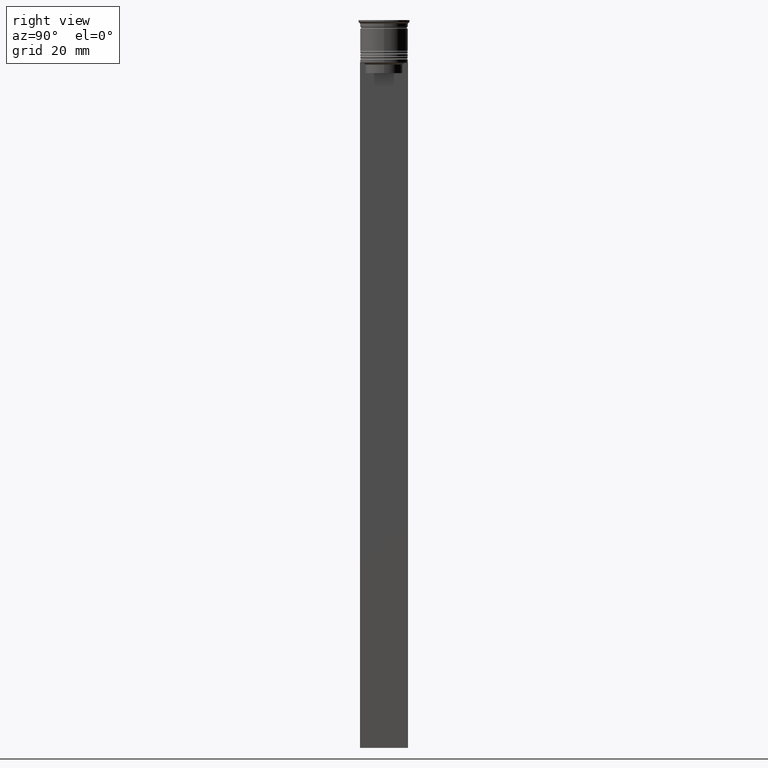
[diagram: clean part render]
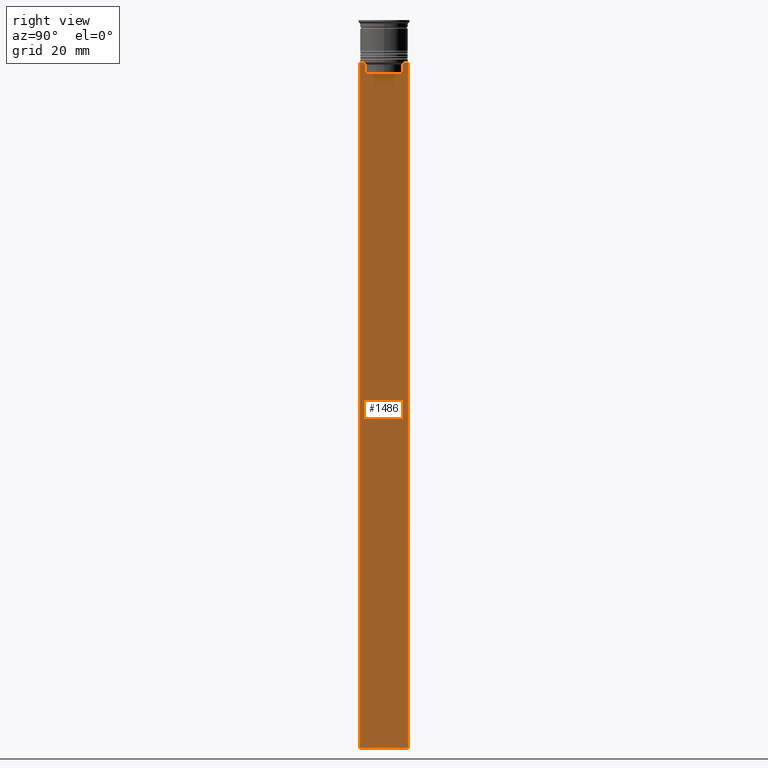
[diagram: same view with one face highlighted and labeled with its STEP entity id]
A machine part, right view. The second image highlights one B-rep face of the part: STEP entity #1486.
In plain terms, the highlighted planar face has unit normal (-1, 0, 0).
Its self-contained STEP definition (entity closure, byte-faithful):
#17 = CARTESIAN_POINT ( 'NONE',  ( 0.5000000000000000000, -5.376802023508029826, -15.50000000000000000 ) ) ;
#42 = EDGE_CURVE ( 'NONE', #1862, #1470, #689, .T. ) ;
#48 = LINE ( 'NONE', #2017, #325 ) ;
#100 = LINE ( 'NONE', #459, #1176 ) ;
#107 = CARTESIAN_POINT ( 'NONE',  ( 0.5000000000000000000, -5.711478856069293286, -12.66669469529570335 ) ) ;
#135 = VECTOR ( 'NONE', #1858, 1000.000000000000000 ) ;
#153 = CARTESIAN_POINT ( 'NONE',  ( 0.5000000000000000000, 5.544156989057553275, -12.83336397825725861 ) ) ;
#199 = VERTEX_POINT ( 'NONE', #1292 ) ;
#256 = VERTEX_POINT ( 'NONE', #2167 ) ;
#290 = VERTEX_POINT ( 'NONE', #17 ) ;
#311 = VERTEX_POINT ( 'NONE', #1370 ) ;
#325 = VECTOR ( 'NONE', #1802, 1000.000000000000000 ) ;
#347 = ORIENTED_EDGE ( 'NONE', *, *, #755, .T. ) ;
#356 = EDGE_CURVE ( 'NONE', #199, #1424, #413, .T. ) ;
#368 = CARTESIAN_POINT ( 'NONE',  ( 0.5000000000000000000, 7.000000000000002665, -12.50000000000000000 ) ) ;
#384 = DIRECTION ( 'NONE',  ( -0.000000000000000000, -0.000000000000000000, 1.000000000000000000 ) ) ;
#401 = ORIENTED_EDGE ( 'NONE', *, *, #457, .T. ) ;
#413 = LINE ( 'NONE', #769, #1918 ) ;
#417 = CARTESIAN_POINT ( 'NONE',  ( 0.5000000000000000000, -6.999999999999997335, -12.50000000000000000 ) ) ;
#418 = VECTOR ( 'NONE', #719, 1000.000000000000000 ) ;
#430 = PLANE ( 'NONE',  #2052 ) ;
#448 = DIRECTION ( 'NONE',  ( -1.000000000000000000, 0.000000000000000000, 0.000000000000000000 ) ) ;
#457 = EDGE_CURVE ( 'NONE', #1756, #1352, #100, .T. ) ;
#459 = CARTESIAN_POINT ( 'NONE',  ( 0.5000000000000000000, -6.999999999999997335, -12.50000000000000000 ) ) ;
#513 = CARTESIAN_POINT ( 'NONE',  ( 0.5000000000000000000, -6.999999999999997335, 1.535668847618198329 ) ) ;
#570 = CARTESIAN_POINT ( 'NONE',  ( 0.5000000000000000000, 7.000000000000002665, -212.5000000000000284 ) ) ;
#639 = ORIENTED_EDGE ( 'NONE', *, *, #42, .T. ) ;
#689 = LINE ( 'NONE', #2011, #977 ) ;
#716 = EDGE_CURVE ( 'NONE', #290, #256, #1523, .T. ) ;
#719 = DIRECTION ( 'NONE',  ( 0.000000000000000000, 0.000000000000000000, -1.000000000000000000 ) ) ;
#728 = CARTESIAN_POINT ( 'NONE',  ( 0.5000000000000000000, 5.711478846560141598, -12.66669470477064685 ) ) ;
#755 = EDGE_CURVE ( 'NONE', #256, #311, #2155, .T. ) ;
#769 = CARTESIAN_POINT ( 'NONE',  ( 0.5000000000000000000, -6.999999999999997335, -212.5000000000000284 ) ) ;
#804 = DIRECTION ( 'NONE',  ( 0.000000000000000000, 0.000000000000000000, 1.000000000000000000 ) ) ;
#805 = VECTOR ( 'NONE', #1875, 1000.000000000000000 ) ;
#845 = DIRECTION ( 'NONE',  ( 0.000000000000000000, 0.000000000000000000, -1.000000000000000000 ) ) ;
#847 = LINE ( 'NONE', #1258, #1759 ) ;
#872 = EDGE_CURVE ( 'NONE', #1470, #290, #1260, .T. ) ;
#915 = CARTESIAN_POINT ( 'NONE',  ( 0.5000000000000000000, 5.376802023508029826, -13.00000000000000178 ) ) ;
#977 = VECTOR ( 'NONE', #845, 1000.000000000000000 ) ;
#1011 = EDGE_CURVE ( 'NONE', #311, #1456, #2324, .T. ) ;
#1072 = VERTEX_POINT ( 'NONE', #1979 ) ;
#1079 = ORIENTED_EDGE ( 'NONE', *, *, #1225, .T. ) ;
#1104 = CARTESIAN_POINT ( 'NONE',  ( 0.5000000000000000000, 5.376802023508029826, -13.00000000000000178 ) ) ;
#1141 = VECTOR ( 'NONE', #2145, 1000.000000000000000 ) ;
#1176 = VECTOR ( 'NONE', #1995, 1000.000000000000000 ) ;
#1222 = ORIENTED_EDGE ( 'NONE', *, *, #2026, .T. ) ;
#1225 = EDGE_CURVE ( 'NONE', #1731, #1756, #847, .T. ) ;
#1258 = CARTESIAN_POINT ( 'NONE',  ( 0.5000000000000000000, -6.999999999999997335, -12.50000000000000000 ) ) ;
#1260 = LINE ( 'NONE', #2051, #135 ) ;
#1291 = CARTESIAN_POINT ( 'NONE',  ( 0.5000000000000000000, 6.881860213634102053, -12.50000000000000000 ) ) ;
#1292 = CARTESIAN_POINT ( 'NONE',  ( 0.5000000000000000000, -6.999999999999997335, -212.5000000000000284 ) ) ;
#1352 = VERTEX_POINT ( 'NONE', #1485 ) ;
#1359 = CARTESIAN_POINT ( 'NONE',  ( 0.5000000000000000000, -6.999999999999997335, 1.535668847618198329 ) ) ;
#1370 = CARTESIAN_POINT ( 'NONE',  ( 0.5000000000000000000, -5.878775382679629402, -12.50000000000000000 ) ) ;
#1388 = EDGE_CURVE ( 'NONE', #1352, #1862, #1857, .T. ) ;
#1400 = ORIENTED_EDGE ( 'NONE', *, *, #356, .T. ) ;
#1424 = VERTEX_POINT ( 'NONE', #570 ) ;
#1445 = ORIENTED_EDGE ( 'NONE', *, *, #1011, .T. ) ;
#1456 = VERTEX_POINT ( 'NONE', #2178 ) ;
#1470 = VERTEX_POINT ( 'NONE', #1791 ) ;
#1485 = CARTESIAN_POINT ( 'NONE',  ( 0.5000000000000000000, 5.878775382679629402, -12.50000000000000000 ) ) ;
#1486 = ADVANCED_FACE ( 'NONE', ( #2359 ), #430, .F. ) ;
#1504 = VECTOR ( 'NONE', #384, 1000.000000000000000 ) ;
#1517 = ORIENTED_EDGE ( 'NONE', *, *, #2180, .T. ) ;
#1523 = LINE ( 'NONE', #2114, #1504 ) ;
#1569 = ORIENTED_EDGE ( 'NONE', *, *, #716, .T. ) ;
#1648 = LINE ( 'NONE', #513, #805 ) ;
#1675 = ORIENTED_EDGE ( 'NONE', *, *, #1388, .T. ) ;
#1731 = VERTEX_POINT ( 'NONE', #368 ) ;
#1756 = VERTEX_POINT ( 'NONE', #1291 ) ;
#1759 = VECTOR ( 'NONE', #1840, 1000.000000000000000 ) ;
#1784 = CARTESIAN_POINT ( 'NONE',  ( 0.5000000000000000000, -5.878775382679629402, -12.50000000000000000 ) ) ;
#1787 = ORIENTED_EDGE ( 'NONE', *, *, #2338, .F. ) ;
#1791 = CARTESIAN_POINT ( 'NONE',  ( 0.5000000000000000000, 5.376802023508029826, -15.50000000000000000 ) ) ;
#1802 = DIRECTION ( 'NONE',  ( 0.000000000000000000, -1.000000000000000000, 0.000000000000000000 ) ) ;
#1803 = DIRECTION ( 'NONE',  ( 0.000000000000000000, 1.000000000000000000, 0.000000000000000000 ) ) ;
#1840 = DIRECTION ( 'NONE',  ( 0.000000000000000000, -1.000000000000000000, 0.000000000000000000 ) ) ;
#1842 = CARTESIAN_POINT ( 'NONE',  ( 0.5000000000000000000, -5.544156999454441959, -12.83336396790503642 ) ) ;
#1857 = B_SPLINE_CURVE_WITH_KNOTS ( 'NONE', 3,
 ( #2439, #728, #153, #915 ),
 .UNSPECIFIED., .F., .F.,
 ( 4, 4 ),
 ( 0.01003009312103698807, 0.01073859663834952557 ),
 .UNSPECIFIED. ) ;
#1858 = DIRECTION ( 'NONE',  ( 0.000000000000000000, -1.000000000000000000, 0.000000000000000000 ) ) ;
#1862 = VERTEX_POINT ( 'NONE', #1104 ) ;
#1874 = EDGE_LOOP ( 'NONE', ( #401, #1675, #639, #2032, #1569, #347, #1445, #1222, #1517, #1400, #1787, #1079 ) ) ;
#1875 = DIRECTION ( 'NONE',  ( 0.000000000000000000, 0.000000000000000000, -1.000000000000000000 ) ) ;
#1903 = CARTESIAN_POINT ( 'NONE',  ( 0.5000000000000000000, 7.000000000000002665, 1.535668847618198329 ) ) ;
#1918 = VECTOR ( 'NONE', #1803, 1000.000000000000000 ) ;
#1979 = CARTESIAN_POINT ( 'NONE',  ( 0.5000000000000000000, -6.999999999999997335, -12.50000000000000000 ) ) ;
#1995 = DIRECTION ( 'NONE',  ( 0.000000000000000000, -1.000000000000000000, 0.000000000000000000 ) ) ;
#2011 = CARTESIAN_POINT ( 'NONE',  ( 0.5000000000000000000, 5.376802023508029826, 0.000000000000000000 ) ) ;
#2017 = CARTESIAN_POINT ( 'NONE',  ( 0.5000000000000000000, -6.999999999999997335, -12.50000000000000000 ) ) ;
#2026 = EDGE_CURVE ( 'NONE', #1456, #1072, #48, .T. ) ;
#2032 = ORIENTED_EDGE ( 'NONE', *, *, #872, .T. ) ;
#2051 = CARTESIAN_POINT ( 'NONE',  ( 0.5000000000000000000, 5.400000000000003908, -15.50000000000000000 ) ) ;
#2052 = AXIS2_PLACEMENT_3D ( 'NONE', #1359, #448, #804 ) ;
#2114 = CARTESIAN_POINT ( 'NONE',  ( 0.5000000000000000000, -5.376802023508029826, 0.000000000000000000 ) ) ;
#2145 = DIRECTION ( 'NONE',  ( 0.000000000000000000, -1.000000000000000000, 0.000000000000000000 ) ) ;
#2155 = B_SPLINE_CURVE_WITH_KNOTS ( 'NONE', 3,
 ( #2399, #1842, #107, #1784 ),
 .UNSPECIFIED., .F., .F.,
 ( 4, 4 ),
 ( 0.02539176325380714666, 0.02610162431828674801 ),
 .UNSPECIFIED. ) ;
#2167 = CARTESIAN_POINT ( 'NONE',  ( 0.5000000000000000000, -5.376802023508029826, -13.00000000000000178 ) ) ;
#2178 = CARTESIAN_POINT ( 'NONE',  ( 0.5000000000000000000, -6.881860213634102053, -12.50000000000000000 ) ) ;
#2180 = EDGE_CURVE ( 'NONE', #1072, #199, #1648, .T. ) ;
#2324 = LINE ( 'NONE', #417, #1141 ) ;
#2338 = EDGE_CURVE ( 'NONE', #1731, #1424, #2444, .T. ) ;
#2359 = FACE_OUTER_BOUND ( 'NONE', #1874, .T. ) ;
#2399 = CARTESIAN_POINT ( 'NONE',  ( 0.5000000000000000000, -5.376802023508029826, -13.00000000000000178 ) ) ;
#2439 = CARTESIAN_POINT ( 'NONE',  ( 0.5000000000000000000, 5.878775382679629402, -12.50000000000000000 ) ) ;
#2444 = LINE ( 'NONE', #1903, #418 ) ;